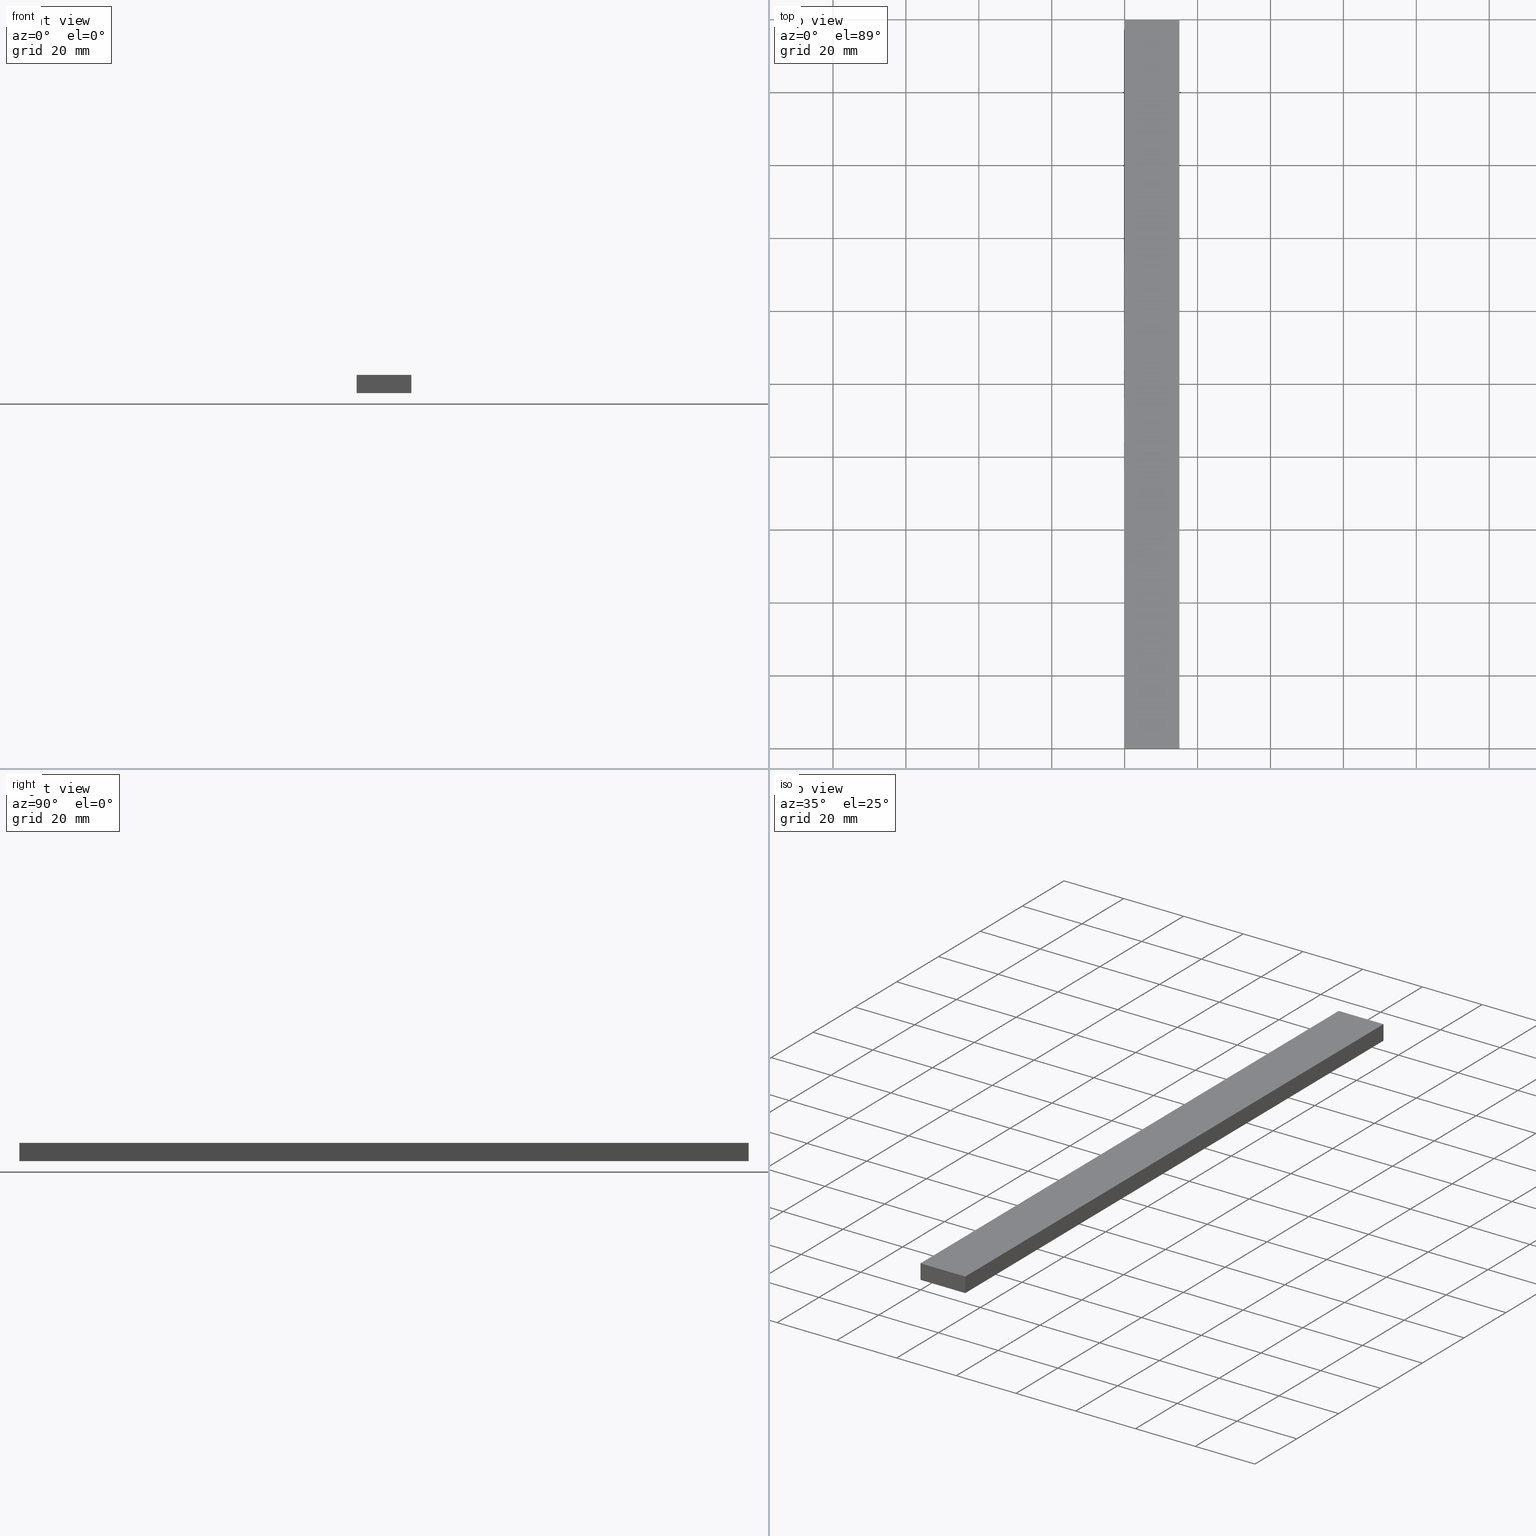
[diagram: canonical four-view strip — front | top / right | iso, engineering-drawing reading convention]
A machine part, canonical four-view strip (front | top / right | iso — engineering-drawing reading convention). The complete STEP part file that produces these views, byte-faithful:
ISO-10303-21;
HEADER;
FILE_DESCRIPTION (( 'STEP AP214' ),
    '1' );
FILE_NAME ('TM_340_3.STEP',
    '2016-05-09T05:06:52',
    ( '' ),
    ( '' ),
    'SwSTEP 2.0',
    'SolidWorks 2015',
    '' );
FILE_SCHEMA (( 'AUTOMOTIVE_DESIGN' ));
ENDSEC;

DATA;
#1 = SURFACE_SIDE_STYLE ('',( #135 ) ) ;
#2 = VECTOR ( 'NONE', #166, 1000.000000000000000 ) ;
#3 = DIRECTION ( 'NONE',  ( 1.000000000000000000, 0.0000000000000000000, 0.0000000000000000000 ) ) ;
#4 = DIRECTION ( 'NONE',  ( 0.0000000000000000000, 0.0000000000000000000, -1.000000000000000000 ) ) ;
#5 = EDGE_CURVE ( 'NONE', #24, #76, #110, .T. ) ;
#6 = PRODUCT ( 'TM_340_3', 'TM_340_3', '', ( #39 ) ) ;
#7 = LINE ( 'NONE', #189, #139 ) ;
#8 = CLOSED_SHELL ( 'NONE', ( #212, #146, #150, #86, #215, #107 ) ) ;
#9 = VECTOR ( 'NONE', #136, 1000.000000000000000 ) ;
#10 = AXIS2_PLACEMENT_3D ( 'NONE', #16, #187, #98 ) ;
#11 = VECTOR ( 'NONE', #155, 1000.000000000000000 ) ;
#12 = ADVANCED_BREP_SHAPE_REPRESENTATION ( '', ( #112, #10 ), #225 ) ;
#13 = ORIENTED_EDGE ( 'NONE', *, *, #126, .F. ) ;
#14 = ORIENTED_EDGE ( 'NONE', *, *, #194, .F. ) ;
#15 = ORIENTED_EDGE ( 'NONE', *, *, #84, .F. ) ;
#16 = CARTESIAN_POINT ( 'NONE',  ( 0.0000000000000000000, 0.0000000000000000000, 0.0000000000000000000 ) ) ;
#17 = LINE ( 'NONE', #193, #11 ) ;
#18 = EDGE_CURVE ( 'NONE', #211, #202, #7, .T. ) ;
#19 = PRESENTATION_STYLE_ASSIGNMENT (( #122 ) ) ;
#20 = STYLED_ITEM ( 'NONE', ( #19 ), #12 ) ;
#21 = ORIENTED_EDGE ( 'NONE', *, *, #141, .F. ) ;
#22 = PRODUCT ( 'rubber foam', 'rubber foam', '', ( #179 ) ) ;
#23 = UNCERTAINTY_MEASURE_WITH_UNIT (LENGTH_MEASURE( 1.000000000000000100E-005 ), #71, 'distance_accuracy_value', 'NONE');
#24 = VERTEX_POINT ( 'NONE', #83 ) ;
#25 = ORIENTED_EDGE ( 'NONE', *, *, #18, .T. ) ;
#26 = PRESENTATION_LAYER_ASSIGNMENT (  '', '', ( #20 ) ) ;
#27 = DIRECTION ( 'NONE',  ( 0.0000000000000000000, -1.000000000000000000, 0.0000000000000000000 ) ) ;
#28 = EDGE_CURVE ( 'NONE', #178, #85, #77, .T. ) ;
#29 =( LENGTH_UNIT ( ) NAMED_UNIT ( * ) SI_UNIT ( .MILLI., .METRE. ) );
#30 = DIRECTION ( 'NONE',  ( 0.0000000000000000000, -1.000000000000000000, 0.0000000000000000000 ) ) ;
#31 = LINE ( 'NONE', #213, #56 ) ;
#32 = CARTESIAN_POINT ( 'NONE',  ( 15.00000000000000000, 0.0000000000000000000, 5.000000000000000000 ) ) ;
#33 = DIRECTION ( 'NONE',  ( -0.0000000000000000000, 1.000000000000000000, 0.0000000000000000000 ) ) ;
#34 = ORIENTED_EDGE ( 'NONE', *, *, #5, .F. ) ;
#35 = DIRECTION ( 'NONE',  ( 1.000000000000000000, 0.0000000000000000000, 0.0000000000000000000 ) ) ;
#36 = ORIENTED_EDGE ( 'NONE', *, *, #170, .F. ) ;
#37 = EDGE_CURVE ( 'NONE', #85, #148, #156, .T. ) ;
#38 = MECHANICAL_DESIGN_GEOMETRIC_PRESENTATION_REPRESENTATION (  '', ( #20 ), #52 ) ;
#39 = PRODUCT_CONTEXT ( 'NONE', #128, 'mechanical' ) ;
#40 = ORIENTED_EDGE ( 'NONE', *, *, #74, .F. ) ;
#41 = APPLICATION_CONTEXT ( 'automotive_design' ) ;
#42 = CARTESIAN_POINT ( 'NONE',  ( 15.00000000000000000, 200.0000000000000000, 0.0000000000000000000 ) ) ;
#43 = UNCERTAINTY_MEASURE_WITH_UNIT (LENGTH_MEASURE( 1.000000000000000100E-005 ), #29, 'distance_accuracy_value', 'NONE');
#44 = ORIENTED_EDGE ( 'NONE', *, *, #5, .T. ) ;
#45 =( NAMED_UNIT ( * ) SI_UNIT ( $, .STERADIAN. ) SOLID_ANGLE_UNIT ( ) );
#46 =( REPRESENTATION_RELATIONSHIP ('NONE','NONE', #54, #140 ) REPRESENTATION_RELATIONSHIP_WITH_TRANSFORMATION ( #190 )SHAPE_REPRESENTATION_RELATIONSHIP( ) );
#47 = FILL_AREA_STYLE ('',( #200 ) ) ;
#48 = PLANE ( 'NONE',  #78 ) ;
#49 = DIRECTION ( 'NONE',  ( 0.0000000000000000000, 0.0000000000000000000, -1.000000000000000000 ) ) ;
#50 = APPLICATION_CONTEXT ( 'automotive_design' ) ;
#51 = LINE ( 'NONE', #68, #173 ) ;
#52 =( GEOMETRIC_REPRESENTATION_CONTEXT ( 3 ) GLOBAL_UNCERTAINTY_ASSIGNED_CONTEXT ( ( #159 ) ) GLOBAL_UNIT_ASSIGNED_CONTEXT ( ( #174, #222, #45 ) ) REPRESENTATION_CONTEXT ( 'NONE', 'WORKASPACE' ) );
#53 = APPLICATION_PROTOCOL_DEFINITION ( 'draft international standard', 'automotive_design', 1998, #50 ) ;
#54 = SHAPE_REPRESENTATION ( 'TM_340_3', ( #134, #100 ), #113 ) ;
#55 = PRODUCT_DEFINITION_CONTEXT ( 'detailed design', #41, 'design' ) ;
#56 = VECTOR ( 'NONE', #66, 1000.000000000000000 ) ;
#57 = ORIENTED_EDGE ( 'NONE', *, *, #62, .T. ) ;
#58 = AXIS2_PLACEMENT_3D ( 'NONE', #70, #154, #124 ) ;
#59 = EDGE_LOOP ( 'NONE', ( #137, #36, #75, #216 ) ) ;
#60 = CARTESIAN_POINT ( 'NONE',  ( 15.00000000000000000, 0.0000000000000000000, 0.0000000000000000000 ) ) ;
#61 = DIRECTION ( 'NONE',  ( -1.000000000000000000, 0.0000000000000000000, 0.0000000000000000000 ) ) ;
#62 = EDGE_CURVE ( 'NONE', #231, #76, #31, .T. ) ;
#63 = CARTESIAN_POINT ( 'NONE',  ( 15.00000000000000000, 1000.000000000000000, 0.0000000000000000000 ) ) ;
#64 = ORIENTED_EDGE ( 'NONE', *, *, #235, .F. ) ;
#65 = CARTESIAN_POINT ( 'NONE',  ( 0.0000000000000000000, 200.0000000000000000, 0.0000000000000000000 ) ) ;
#66 = DIRECTION ( 'NONE',  ( 0.0000000000000000000, 0.0000000000000000000, 1.000000000000000000 ) ) ;
#67 = STYLED_ITEM ( 'NONE', ( #188 ), #112 ) ;
#68 = CARTESIAN_POINT ( 'NONE',  ( 0.0000000000000000000, 0.0000000000000000000, 5.000000000000000000 ) ) ;
#69 = VECTOR ( 'NONE', #123, 1000.000000000000000 ) ;
#70 = CARTESIAN_POINT ( 'NONE',  ( 15.00000000000000000, 1000.000000000000000, 0.0000000000000000000 ) ) ;
#71 =( LENGTH_UNIT ( ) NAMED_UNIT ( * ) SI_UNIT ( .MILLI., .METRE. ) );
#72 = CARTESIAN_POINT ( 'NONE',  ( 0.0000000000000000000, 0.0000000000000000000, 0.0000000000000000000 ) ) ;
#73 = PRODUCT_DEFINITION_SHAPE ( 'NONE', 'NONE',  #183 ) ;
#74 = EDGE_CURVE ( 'NONE', #211, #148, #226, .T. ) ;
#75 = ORIENTED_EDGE ( 'NONE', *, *, #18, .F. ) ;
#76 = VERTEX_POINT ( 'NONE', #88 ) ;
#77 = LINE ( 'NONE', #152, #164 ) ;
#78 = AXIS2_PLACEMENT_3D ( 'NONE', #176, #79, #3 ) ;
#79 = DIRECTION ( 'NONE',  ( -0.0000000000000000000, 1.000000000000000000, 0.0000000000000000000 ) ) ;
#80 = FILL_AREA_STYLE ('',( #117 ) ) ;
#81 = PLANE ( 'NONE',  #58 ) ;
#82 = SURFACE_STYLE_USAGE ( .BOTH. , #192 ) ;
#83 = CARTESIAN_POINT ( 'NONE',  ( 0.0000000000000000000, 200.0000000000000000, 5.000000000000000000 ) ) ;
#84 = EDGE_CURVE ( 'NONE', #24, #178, #142, .T. ) ;
#85 = VERTEX_POINT ( 'NONE', #97 ) ;
#86 = ADVANCED_FACE ( 'NONE', ( #180 ), #81, .F. ) ;
#87 = DIRECTION ( 'NONE',  ( 0.0000000000000000000, 0.0000000000000000000, 1.000000000000000000 ) ) ;
#88 = CARTESIAN_POINT ( 'NONE',  ( 0.0000000000000000000, 0.0000000000000000000, 5.000000000000000000 ) ) ;
#89 = AXIS2_PLACEMENT_3D ( 'NONE', #104, #158, #218 ) ;
#90 = ORIENTED_EDGE ( 'NONE', *, *, #170, .T. ) ;
#91 = PRESENTATION_LAYER_ASSIGNMENT (  '', '', ( #67 ) ) ;
#92 = EDGE_LOOP ( 'NONE', ( #160, #40, #64, #206 ) ) ;
#93 = ORIENTED_EDGE ( 'NONE', *, *, #62, .F. ) ;
#94 = DIRECTION ( 'NONE',  ( 0.0000000000000000000, 0.0000000000000000000, 1.000000000000000000 ) ) ;
#95 = APPLICATION_CONTEXT ( 'automotive_design' ) ;
#96 = FACE_OUTER_BOUND ( 'NONE', #101, .T. ) ;
#97 = CARTESIAN_POINT ( 'NONE',  ( 15.00000000000000000, 0.0000000000000000000, 5.000000000000000000 ) ) ;
#98 = DIRECTION ( 'NONE',  ( 1.000000000000000000, 0.0000000000000000000, 0.0000000000000000000 ) ) ;
#99 = LINE ( 'NONE', #127, #69 ) ;
#100 = AXIS2_PLACEMENT_3D ( 'NONE', #143, #94, #115 ) ;
#101 = EDGE_LOOP ( 'NONE', ( #210, #196, #133, #25 ) ) ;
#102 = DIRECTION ( 'NONE',  ( 1.000000000000000000, 0.0000000000000000000, 0.0000000000000000000 ) ) ;
#103 = MECHANICAL_DESIGN_GEOMETRIC_PRESENTATION_REPRESENTATION (  '', ( #67 ), #114 ) ;
#104 = CARTESIAN_POINT ( 'NONE',  ( 0.0000000000000000000, 0.0000000000000000000, 0.0000000000000000000 ) ) ;
#105 =( NAMED_UNIT ( * ) PLANE_ANGLE_UNIT ( ) SI_UNIT ( $, .RADIAN. ) );
#106 = CARTESIAN_POINT ( 'NONE',  ( 0.0000000000000000000, 200.0000000000000000, 5.000000000000000000 ) ) ;
#107 = ADVANCED_FACE ( 'NONE', ( #162 ), #48, .F. ) ;
#108 = PRODUCT_RELATED_PRODUCT_CATEGORY ( 'part', '', ( #6 ) ) ;
#109 = ORIENTED_EDGE ( 'NONE', *, *, #28, .F. ) ;
#110 = LINE ( 'NONE', #121, #9 ) ;
#111 = ORIENTED_EDGE ( 'NONE', *, *, #141, .T. ) ;
#112 = MANIFOLD_SOLID_BREP ( '���߰�1', #8 ) ;
#113 =( GEOMETRIC_REPRESENTATION_CONTEXT ( 3 ) GLOBAL_UNCERTAINTY_ASSIGNED_CONTEXT ( ( #204 ) ) GLOBAL_UNIT_ASSIGNED_CONTEXT ( ( #167, #105, #227 ) ) REPRESENTATION_CONTEXT ( 'NONE', 'WORKASPACE' ) );
#114 =( GEOMETRIC_REPRESENTATION_CONTEXT ( 3 ) GLOBAL_UNCERTAINTY_ASSIGNED_CONTEXT ( ( #43 ) ) GLOBAL_UNIT_ASSIGNED_CONTEXT ( ( #29, #220, #147 ) ) REPRESENTATION_CONTEXT ( 'NONE', 'WORKASPACE' ) );
#115 = DIRECTION ( 'NONE',  ( 1.000000000000000000, 0.0000000000000000000, 0.0000000000000000000 ) ) ;
#116 = CONTEXT_DEPENDENT_SHAPE_REPRESENTATION ( #46, #175 ) ;
#117 = FILL_AREA_STYLE_COLOUR ( '', #151 ) ;
#118 = EDGE_LOOP ( 'NONE', ( #93, #14, #199, #21 ) ) ;
#119 = DIRECTION ( 'NONE',  ( 0.0000000000000000000, 0.0000000000000000000, 1.000000000000000000 ) ) ;
#120 = PRODUCT_DEFINITION_FORMATION_WITH_SPECIFIED_SOURCE ( 'ANY', '', #22, .NOT_KNOWN. ) ;
#121 = CARTESIAN_POINT ( 'NONE',  ( 0.0000000000000000000, 1000.000000000000000, 5.000000000000000000 ) ) ;
#122 = SURFACE_STYLE_USAGE ( .BOTH. , #1 ) ;
#123 = DIRECTION ( 'NONE',  ( 0.0000000000000000000, 0.0000000000000000000, 1.000000000000000000 ) ) ;
#124 = DIRECTION ( 'NONE',  ( 1.000000000000000000, 0.0000000000000000000, 0.0000000000000000000 ) ) ;
#125 = CARTESIAN_POINT ( 'NONE',  ( 0.0000000000000000000, 0.0000000000000000000, 0.0000000000000000000 ) ) ;
#126 = EDGE_CURVE ( 'NONE', #202, #24, #99, .T. ) ;
#127 = CARTESIAN_POINT ( 'NONE',  ( 0.0000000000000000000, 200.0000000000000000, 0.0000000000000000000 ) ) ;
#128 = APPLICATION_CONTEXT ( 'automotive_design' ) ;
#129 = APPLICATION_PROTOCOL_DEFINITION ( 'draft international standard', 'automotive_design', 1998, #128 ) ;
#130 =( NAMED_UNIT ( * ) PLANE_ANGLE_UNIT ( ) SI_UNIT ( $, .RADIAN. ) );
#131 = VECTOR ( 'NONE', #27, 1000.000000000000000 ) ;
#132 = DIRECTION ( 'NONE',  ( 1.000000000000000000, 0.0000000000000000000, 0.0000000000000000000 ) ) ;
#133 = ORIENTED_EDGE ( 'NONE', *, *, #235, .T. ) ;
#134 = AXIS2_PLACEMENT_3D ( 'NONE', #72, #87, #197 ) ;
#135 = SURFACE_STYLE_FILL_AREA ( #80 ) ;
#136 = DIRECTION ( 'NONE',  ( 0.0000000000000000000, -1.000000000000000000, 0.0000000000000000000 ) ) ;
#137 = ORIENTED_EDGE ( 'NONE', *, *, #194, .T. ) ;
#138 = PRODUCT_RELATED_PRODUCT_CATEGORY ( 'part', '', ( #22 ) ) ;
#139 = VECTOR ( 'NONE', #223, 1000.000000000000000 ) ;
#140 = SHAPE_REPRESENTATION ( 'rubber foam', ( #10 ), #225 ) ;
#141 = EDGE_CURVE ( 'NONE', #76, #85, #51, .T. ) ;
#142 = LINE ( 'NONE', #106, #168 ) ;
#143 = CARTESIAN_POINT ( 'NONE',  ( 0.0000000000000000000, 0.0000000000000000000, 0.0000000000000000000 ) ) ;
#144 = PLANE ( 'NONE',  #165 ) ;
#145 = PLANE ( 'NONE',  #195 ) ;
#146 = ADVANCED_FACE ( 'NONE', ( #221 ), #144, .F. ) ;
#147 =( NAMED_UNIT ( * ) SI_UNIT ( $, .STERADIAN. ) SOLID_ANGLE_UNIT ( ) );
#148 = VERTEX_POINT ( 'NONE', #219 ) ;
#149 = VECTOR ( 'NONE', #30, 1000.000000000000000 ) ;
#150 = ADVANCED_FACE ( 'NONE', ( #232 ), #145, .F. ) ;
#151 = COLOUR_RGB ( '',0.7921568627450980000, 0.8196078431372548800, 0.9333333333333333500 ) ;
#152 = CARTESIAN_POINT ( 'NONE',  ( 15.00000000000000000, 1000.000000000000000, 5.000000000000000000 ) ) ;
#153 = PRODUCT_DEFINITION ( 'UNKNOWN', '', #120, #55 ) ;
#154 = DIRECTION ( 'NONE',  ( 0.0000000000000000000, 0.0000000000000000000, 1.000000000000000000 ) ) ;
#155 = DIRECTION ( 'NONE',  ( 0.0000000000000000000, 0.0000000000000000000, -1.000000000000000000 ) ) ;
#156 = LINE ( 'NONE', #32, #230 ) ;
#157 = EDGE_LOOP ( 'NONE', ( #111, #109, #15, #44 ) ) ;
#158 = DIRECTION ( 'NONE',  ( 0.0000000000000000000, 0.0000000000000000000, 1.000000000000000000 ) ) ;
#159 = UNCERTAINTY_MEASURE_WITH_UNIT (LENGTH_MEASURE( 1.000000000000000100E-005 ), #174, 'distance_accuracy_value', 'NONE');
#160 = ORIENTED_EDGE ( 'NONE', *, *, #37, .T. ) ;
#161 = LINE ( 'NONE', #60, #2 ) ;
#162 = FACE_OUTER_BOUND ( 'NONE', #118, .T. ) ;
#163 = LINE ( 'NONE', #207, #131 ) ;
#164 = VECTOR ( 'NONE', #182, 1000.000000000000000 ) ;
#165 = AXIS2_PLACEMENT_3D ( 'NONE', #238, #186, #61 ) ;
#166 = DIRECTION ( 'NONE',  ( -1.000000000000000000, 0.0000000000000000000, 0.0000000000000000000 ) ) ;
#167 =( LENGTH_UNIT ( ) NAMED_UNIT ( * ) SI_UNIT ( .MILLI., .METRE. ) );
#168 = VECTOR ( 'NONE', #132, 1000.000000000000000 ) ;
#169 = EDGE_LOOP ( 'NONE', ( #57, #34, #13, #90 ) ) ;
#170 = EDGE_CURVE ( 'NONE', #202, #231, #163, .T. ) ;
#171 = CARTESIAN_POINT ( 'NONE',  ( 15.00000000000000000, 200.0000000000000000, 5.000000000000000000 ) ) ;
#172 =( NAMED_UNIT ( * ) SI_UNIT ( $, .STERADIAN. ) SOLID_ANGLE_UNIT ( ) );
#173 = VECTOR ( 'NONE', #35, 1000.000000000000000 ) ;
#174 =( LENGTH_UNIT ( ) NAMED_UNIT ( * ) SI_UNIT ( .MILLI., .METRE. ) );
#175 = PRODUCT_DEFINITION_SHAPE ( 'NONE', 'NONE',  #239 ) ;
#176 = CARTESIAN_POINT ( 'NONE',  ( 0.0000000000000000000, 0.0000000000000000000, 0.0000000000000000000 ) ) ;
#177 = DIRECTION ( 'NONE',  ( 1.000000000000000000, 0.0000000000000000000, 0.0000000000000000000 ) ) ;
#178 = VERTEX_POINT ( 'NONE', #171 ) ;
#179 = PRODUCT_CONTEXT ( 'NONE', #50, 'mechanical' ) ;
#180 = FACE_OUTER_BOUND ( 'NONE', #59, .T. ) ;
#181 = PRODUCT_DEFINITION_CONTEXT ( 'detailed design', #95, 'design' ) ;
#182 = DIRECTION ( 'NONE',  ( 0.0000000000000000000, -1.000000000000000000, 0.0000000000000000000 ) ) ;
#183 = PRODUCT_DEFINITION ( 'UNKNOWN', '', #191, #181 ) ;
#184 = SHAPE_DEFINITION_REPRESENTATION ( #201, #140 ) ;
#185 = PLANE ( 'NONE',  #217 ) ;
#186 = DIRECTION ( 'NONE',  ( 0.0000000000000000000, 0.0000000000000000000, -1.000000000000000000 ) ) ;
#187 = DIRECTION ( 'NONE',  ( 0.0000000000000000000, 0.0000000000000000000, 1.000000000000000000 ) ) ;
#188 = PRESENTATION_STYLE_ASSIGNMENT (( #82 ) ) ;
#189 = CARTESIAN_POINT ( 'NONE',  ( 15.00000000000000000, 200.0000000000000000, 0.0000000000000000000 ) ) ;
#190 = ITEM_DEFINED_TRANSFORMATION ( 'NONE', 'NONE', #100,  #10 ) ;
#191 = PRODUCT_DEFINITION_FORMATION_WITH_SPECIFIED_SOURCE ( 'ANY', '', #6, .NOT_KNOWN. ) ;
#192 = SURFACE_SIDE_STYLE ('',( #228 ) ) ;
#193 = CARTESIAN_POINT ( 'NONE',  ( 15.00000000000000000, 200.0000000000000000, 5.000000000000000000 ) ) ;
#194 = EDGE_CURVE ( 'NONE', #148, #231, #161, .T. ) ;
#195 = AXIS2_PLACEMENT_3D ( 'NONE', #209, #229, #119 ) ;
#196 = ORIENTED_EDGE ( 'NONE', *, *, #84, .T. ) ;
#197 = DIRECTION ( 'NONE',  ( 1.000000000000000000, 0.0000000000000000000, 0.0000000000000000000 ) ) ;
#198 = APPLICATION_PROTOCOL_DEFINITION ( 'draft international standard', 'automotive_design', 1998, #95 ) ;
#199 = ORIENTED_EDGE ( 'NONE', *, *, #37, .F. ) ;
#200 = FILL_AREA_STYLE_COLOUR ( '', #203 ) ;
#201 = PRODUCT_DEFINITION_SHAPE ( 'NONE', 'NONE',  #153 ) ;
#202 = VERTEX_POINT ( 'NONE', #65 ) ;
#203 = COLOUR_RGB ( '',0.7921568627450980000, 0.8196078431372548800, 0.9333333333333333500 ) ;
#204 = UNCERTAINTY_MEASURE_WITH_UNIT (LENGTH_MEASURE( 1.000000000000000100E-005 ), #167, 'distance_accuracy_value', 'NONE');
#205 = SHAPE_REPRESENTATION_RELATIONSHIP ( 'NONE' , 'NONE' ,  #140, #12 ) ;
#206 = ORIENTED_EDGE ( 'NONE', *, *, #28, .T. ) ;
#207 = CARTESIAN_POINT ( 'NONE',  ( 0.0000000000000000000, 1000.000000000000000, 0.0000000000000000000 ) ) ;
#208 = PLANE ( 'NONE',  #236 ) ;
#209 = CARTESIAN_POINT ( 'NONE',  ( 15.00000000000000000, 1000.000000000000000, 5.000000000000000000 ) ) ;
#210 = ORIENTED_EDGE ( 'NONE', *, *, #126, .T. ) ;
#211 = VERTEX_POINT ( 'NONE', #42 ) ;
#212 = ADVANCED_FACE ( 'NONE', ( #233 ), #185, .F. ) ;
#213 = CARTESIAN_POINT ( 'NONE',  ( 0.0000000000000000000, 0.0000000000000000000, 0.0000000000000000000 ) ) ;
#214 = CARTESIAN_POINT ( 'NONE',  ( 0.0000000000000000000, 1000.000000000000000, 0.0000000000000000000 ) ) ;
#215 = ADVANCED_FACE ( 'NONE', ( #96 ), #208, .T. ) ;
#216 = ORIENTED_EDGE ( 'NONE', *, *, #74, .T. ) ;
#217 = AXIS2_PLACEMENT_3D ( 'NONE', #214, #102, #4 ) ;
#218 = DIRECTION ( 'NONE',  ( 1.000000000000000000, 0.0000000000000000000, 0.0000000000000000000 ) ) ;
#219 = CARTESIAN_POINT ( 'NONE',  ( 15.00000000000000000, 0.0000000000000000000, 0.0000000000000000000 ) ) ;
#220 =( NAMED_UNIT ( * ) PLANE_ANGLE_UNIT ( ) SI_UNIT ( $, .RADIAN. ) );
#221 = FACE_OUTER_BOUND ( 'NONE', #157, .T. ) ;
#222 =( NAMED_UNIT ( * ) PLANE_ANGLE_UNIT ( ) SI_UNIT ( $, .RADIAN. ) );
#223 = DIRECTION ( 'NONE',  ( -1.000000000000000000, 0.0000000000000000000, 0.0000000000000000000 ) ) ;
#224 = CARTESIAN_POINT ( 'NONE',  ( 0.0000000000000000000, 200.0000000000000000, 0.0000000000000000000 ) ) ;
#225 =( GEOMETRIC_REPRESENTATION_CONTEXT ( 3 ) GLOBAL_UNCERTAINTY_ASSIGNED_CONTEXT ( ( #23 ) ) GLOBAL_UNIT_ASSIGNED_CONTEXT ( ( #71, #130, #172 ) ) REPRESENTATION_CONTEXT ( 'NONE', 'WORKASPACE' ) );
#226 = LINE ( 'NONE', #63, #149 ) ;
#227 =( NAMED_UNIT ( * ) SI_UNIT ( $, .STERADIAN. ) SOLID_ANGLE_UNIT ( ) );
#228 = SURFACE_STYLE_FILL_AREA ( #47 ) ;
#229 = DIRECTION ( 'NONE',  ( -1.000000000000000000, 0.0000000000000000000, 0.0000000000000000000 ) ) ;
#230 = VECTOR ( 'NONE', #49, 1000.000000000000000 ) ;
#231 = VERTEX_POINT ( 'NONE', #125 ) ;
#232 = FACE_OUTER_BOUND ( 'NONE', #92, .T. ) ;
#233 = FACE_OUTER_BOUND ( 'NONE', #169, .T. ) ;
#234 = APPLICATION_PROTOCOL_DEFINITION ( 'draft international standard', 'automotive_design', 1998, #41 ) ;
#235 = EDGE_CURVE ( 'NONE', #178, #211, #17, .T. ) ;
#236 = AXIS2_PLACEMENT_3D ( 'NONE', #224, #33, #177 ) ;
#237 = SHAPE_DEFINITION_REPRESENTATION ( #73, #54 ) ;
#238 = CARTESIAN_POINT ( 'NONE',  ( 0.0000000000000000000, 1000.000000000000000, 5.000000000000000000 ) ) ;
#239 = NEXT_ASSEMBLY_USAGE_OCCURRENCE ( 'NAUO1', ' ', ' ', #183, #153, $ ) ;
ENDSEC;
END-ISO-10303-21;
